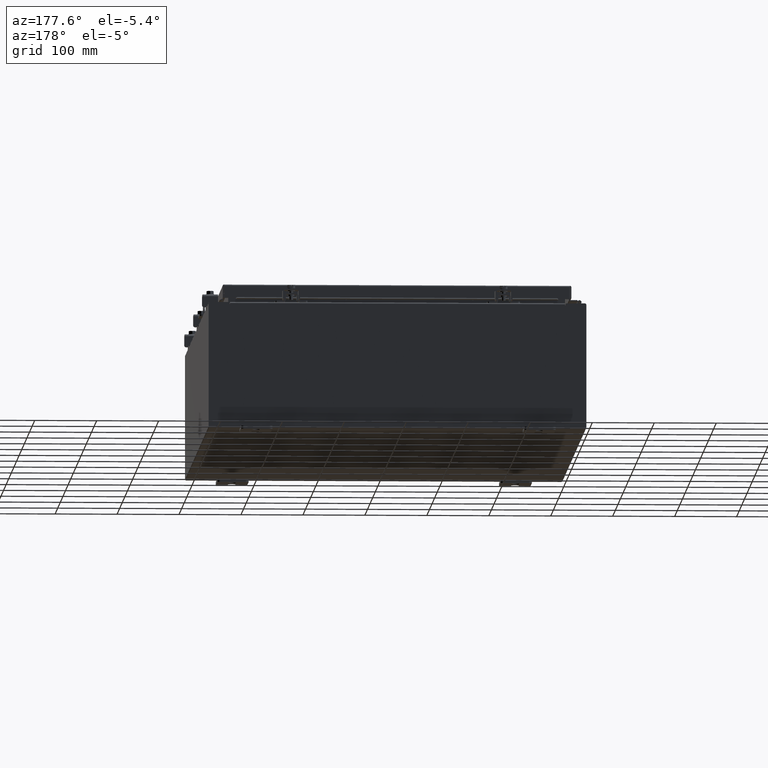
[diagram: clean part render]
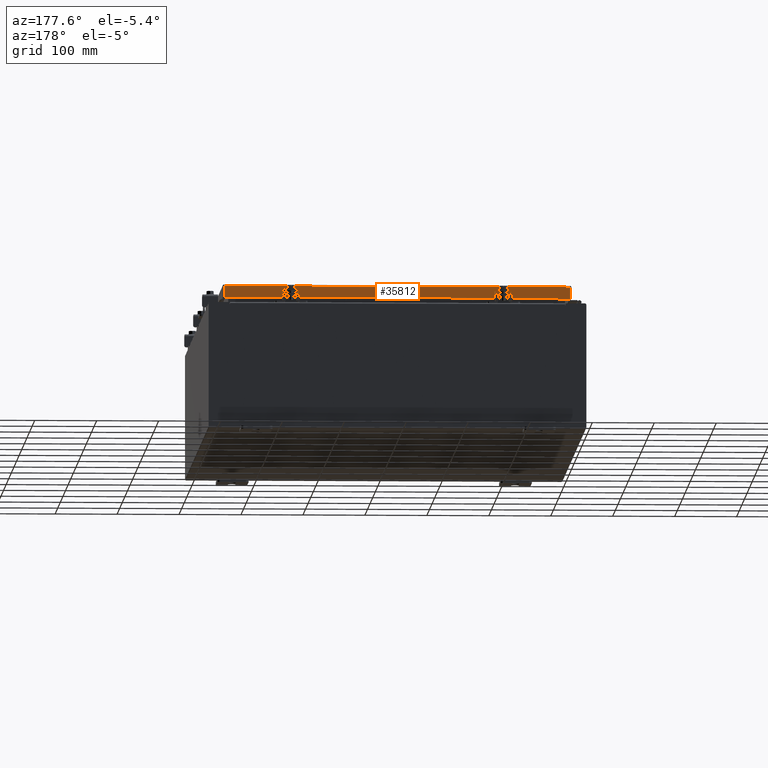
[diagram: same view with one face highlighted and labeled with its STEP entity id]
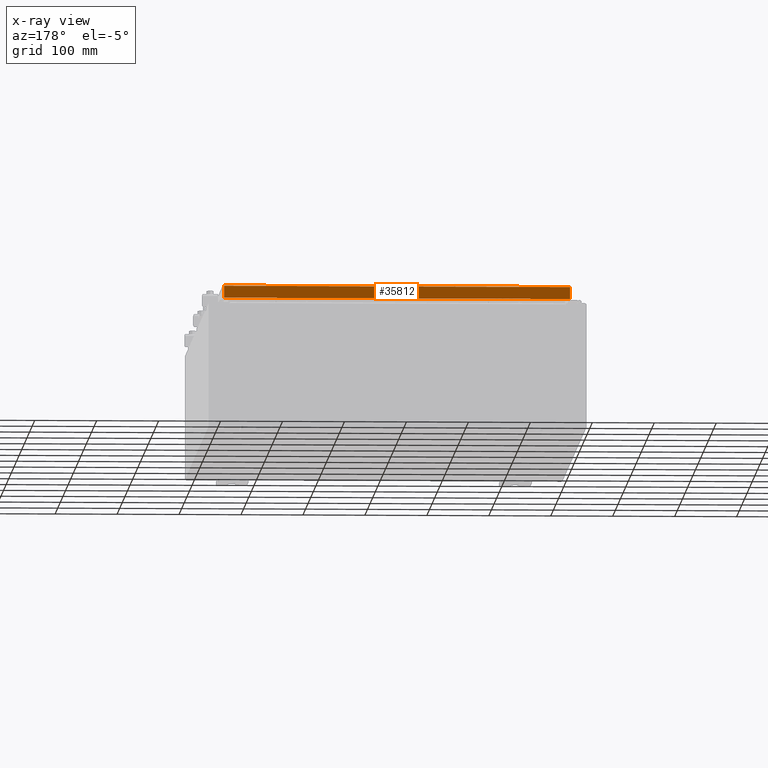
[diagram: x-ray of the same camera — body ghosted, the highlighted face saturated]
A machine part, auxiliary view. The second image highlights one B-rep face of the part: STEP entity #35812.
The next image is the same camera in x-ray: the body ghosted, the highlighted face saturated — about 0% of this face is hidden behind the body in this view.
In plain terms, the highlighted planar face has unit normal (0, -1, -0).
Its self-contained STEP definition (entity closure, byte-faithful):
#189 = EDGE_CURVE ( 'NONE', #20336, #32658, #32667, .T. ) ;
#231 = DIRECTION ( 'NONE',  ( 1.000000000000000000, -4.379057701015054300E-047, 1.233005954894504400E-016 ) ) ;
#3687 = ORIENTED_EDGE ( 'NONE', *, *, #38176, .F. ) ;
#4093 = DIRECTION ( 'NONE',  ( 1.000000000000000000, -4.379057701015054300E-047, 1.233005954894504400E-016 ) ) ;
#4203 = AXIS2_PLACEMENT_3D ( 'NONE', #37404, #8277, #31008 ) ;
#4685 = VERTEX_POINT ( 'NONE', #34921 ) ;
#6743 = VECTOR ( 'NONE', #29601, 39.37007874015748100 ) ;
#7848 = CARTESIAN_POINT ( 'NONE',  ( -10.23915786437626900, 17.09400000000000800, -0.8500000000000033100 ) ) ;
#7877 = ORIENTED_EDGE ( 'NONE', *, *, #15501, .T. ) ;
#8277 = DIRECTION ( 'NONE',  ( 3.475696988576941300E-031, -1.000000000000000000, -2.818880942772350300E-015 ) ) ;
#8760 = DIRECTION ( 'NONE',  ( 0.0000000000000000000, 2.818880942772350300E-015, -1.000000000000000000 ) ) ;
#10368 = EDGE_CURVE ( 'NONE', #31188, #27348, #24021, .T. ) ;
#11459 = DIRECTION ( 'NONE',  ( -1.000000000000000000, -3.475696988576942200E-031, -9.473942235605600700E-046 ) ) ;
#12546 = VECTOR ( 'NONE', #8760, 39.37007874015748100 ) ;
#15359 = LINE ( 'NONE', #26348, #6743 ) ;
#15501 = EDGE_CURVE ( 'NONE', #20336, #28112, #30882, .T. ) ;
#17635 = EDGE_CURVE ( 'NONE', #27348, #28112, #38827, .T. ) ;
#18923 = CARTESIAN_POINT ( 'NONE',  ( -10.23915786437626900, 17.09400000000000800, -0.8500000000000033100 ) ) ;
#20336 = VERTEX_POINT ( 'NONE', #31491 ) ;
#21190 = PLANE ( 'NONE',  #4203 ) ;
#22758 = ORIENTED_EDGE ( 'NONE', *, *, #10368, .F. ) ;
#22807 = EDGE_CURVE ( 'NONE', #32658, #4685, #15359, .T. ) ;
#22963 = CARTESIAN_POINT ( 'NONE',  ( -11.07800000000000300, 17.09400000000000800, -0.8500000000000024200 ) ) ;
#23110 = FACE_OUTER_BOUND ( 'NONE', #39221, .T. ) ;
#24021 = LINE ( 'NONE', #18923, #25055 ) ;
#24327 = ORIENTED_EDGE ( 'NONE', *, *, #17635, .F. ) ;
#25051 = VECTOR ( 'NONE', #11459, 39.37007874015748100 ) ;
#25055 = VECTOR ( 'NONE', #31927, 39.37007874015748100 ) ;
#25768 = CARTESIAN_POINT ( 'NONE',  ( -10.98915786437626900, 17.09400000000000800, -0.08770000000000007000 ) ) ;
#26348 = CARTESIAN_POINT ( 'NONE',  ( -10.98915786437627200, 17.09400000000000800, -0.07469999999999978000 ) ) ;
#27348 = VERTEX_POINT ( 'NONE', #33867 ) ;
#28112 = VERTEX_POINT ( 'NONE', #33947 ) ;
#28213 = CARTESIAN_POINT ( 'NONE',  ( 10.98915786437626500, 17.09400000000000800, 4.844676449176215600E-014 ) ) ;
#28667 = ORIENTED_EDGE ( 'NONE', *, *, #189, .F. ) ;
#29601 = DIRECTION ( 'NONE',  ( -0.0000000000000000000, 2.818880942772350300E-015, -1.000000000000000000 ) ) ;
#30166 = VECTOR ( 'NONE', #4093, 39.37007874015748100 ) ;
#30882 = LINE ( 'NONE', #28213, #12546 ) ;
#31008 = DIRECTION ( 'NONE',  ( 0.0000000000000000000, 2.818880942772350300E-015, -1.000000000000000000 ) ) ;
#31188 = VERTEX_POINT ( 'NONE', #7848 ) ;
#31491 = CARTESIAN_POINT ( 'NONE',  ( 10.98915786437626500, 17.09400000000000800, -0.08770000000000007000 ) ) ;
#31608 = VECTOR ( 'NONE', #231, 39.37007874015748100 ) ;
#31927 = DIRECTION ( 'NONE',  ( 1.000000000000000000, -0.0000000000000000000, -0.0000000000000000000 ) ) ;
#32658 = VERTEX_POINT ( 'NONE', #25768 ) ;
#32667 = LINE ( 'NONE', #34223, #25051 ) ;
#33867 = CARTESIAN_POINT ( 'NONE',  ( 10.23915786437626500, 17.09400000000000800, -0.8500000000000033100 ) ) ;
#33947 = CARTESIAN_POINT ( 'NONE',  ( 10.98915786437626500, 17.09400000000000800, -0.8499999999999996400 ) ) ;
#34223 = CARTESIAN_POINT ( 'NONE',  ( -11.07800000000000300, 17.09400000000000800, -0.08770000000000007000 ) ) ;
#34840 = ORIENTED_EDGE ( 'NONE', *, *, #22807, .F. ) ;
#34921 = CARTESIAN_POINT ( 'NONE',  ( -10.98915786437627200, 17.09400000000000800, -0.8500000000000024200 ) ) ;
#35812 = ADVANCED_FACE ( 'NONE', ( #23110 ), #21190, .F. ) ;
#36504 = CARTESIAN_POINT ( 'NONE',  ( -11.07800000000000300, 17.09400000000000800, -0.8500000000000024200 ) ) ;
#37404 = CARTESIAN_POINT ( 'NONE',  ( -5.941356432273426800E-030, 17.09400000000000800, 4.844676449176215600E-014 ) ) ;
#38176 = EDGE_CURVE ( 'NONE', #4685, #31188, #40225, .T. ) ;
#38827 = LINE ( 'NONE', #36504, #30166 ) ;
#39221 = EDGE_LOOP ( 'NONE', ( #28667, #7877, #24327, #22758, #3687, #34840 ) ) ;
#40225 = LINE ( 'NONE', #22963, #31608 ) ;